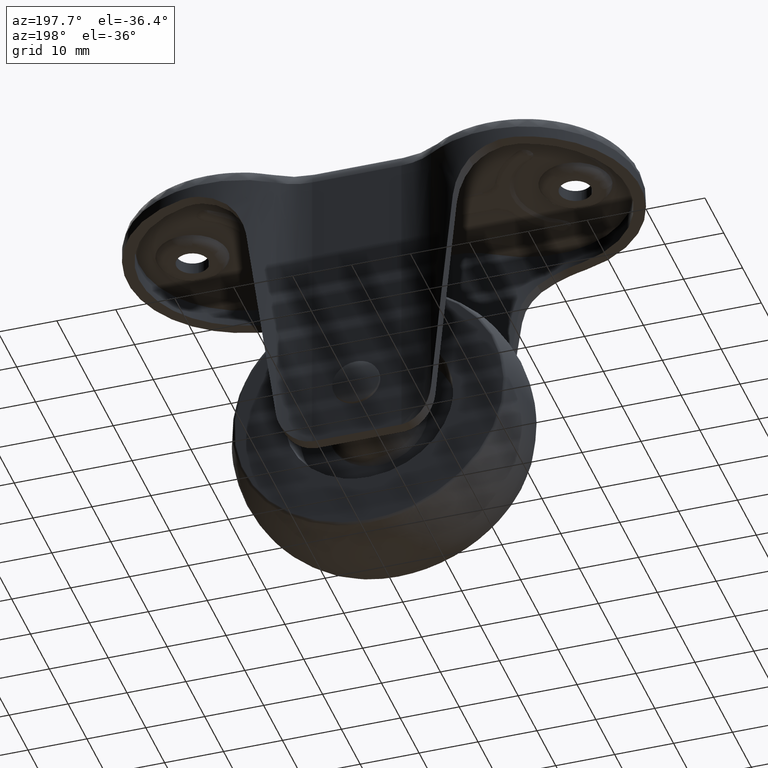
[diagram: clean part render]
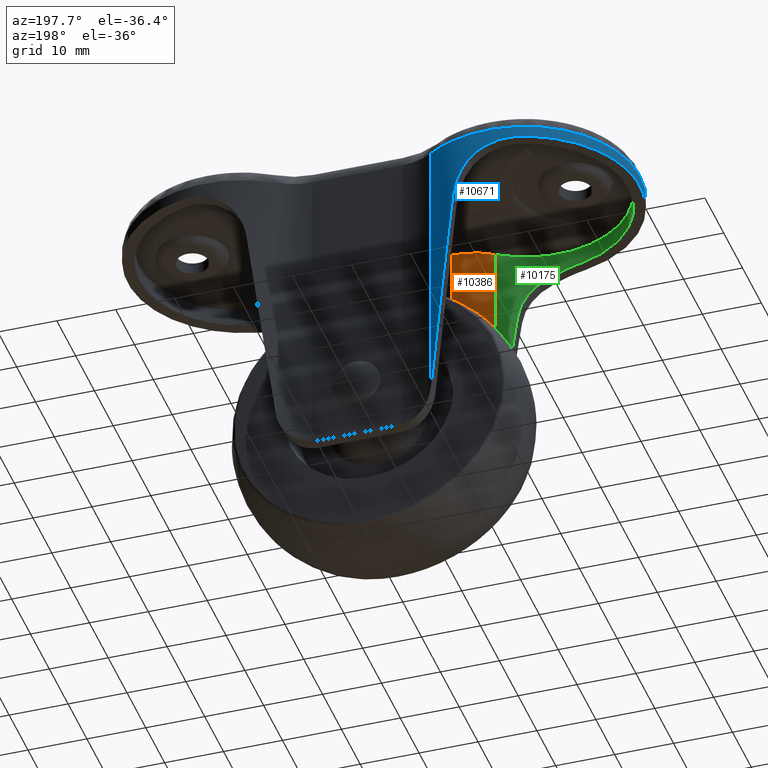
[diagram: same view with three faces highlighted in distinct colors, each labeled with its STEP entity id]
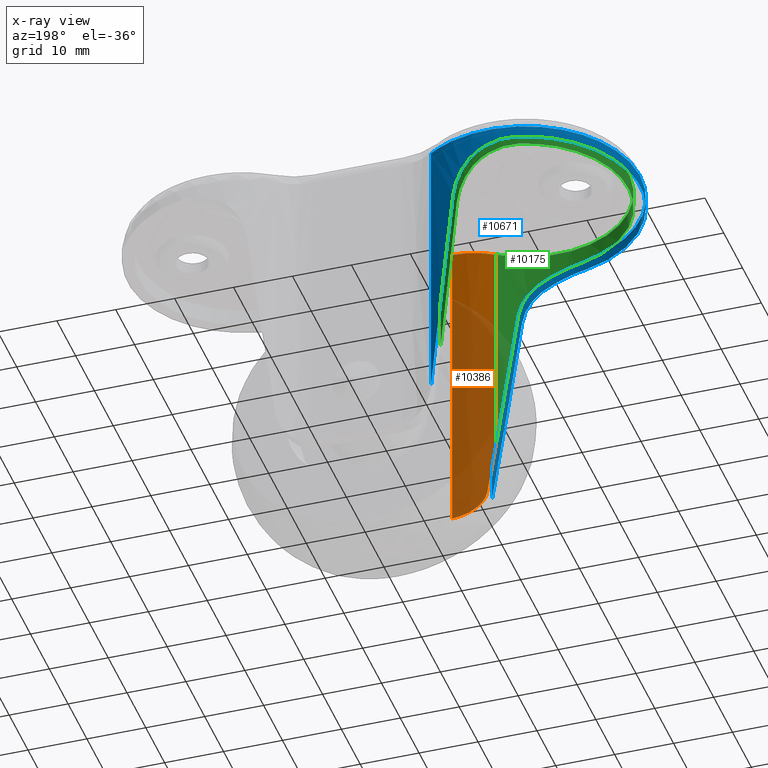
[diagram: x-ray of the same camera — body ghosted, the three highlighted faces saturated]
A machine part, auxiliary view with three faces highlighted in distinct colors.
The next image is the same camera in x-ray (body ghosted, the three faces saturated) — at least one of them is partly hidden behind the body in this view.
Their STEP definitions:

[orange] entity #10386 — the highlighted face is a freeform B-spline surface patch.
#9789=CARTESIAN_POINT('',(-14.252395133952280,-14.533898285573720,-40.727884689475850));
#9790=VERTEX_POINT('',#9789);
#9804=CARTESIAN_POINT('',(-13.146924909847920,-13.875537669035261,-49.731216060430903));
#9805=VERTEX_POINT('',#9804);
#9806=CARTESIAN_POINT('',(-14.252395133952280,-14.533898285573720,-40.727884689475850));
#9807=CARTESIAN_POINT('',(-13.717333118470126,-14.175042645783165,-45.085614571401472));
#9808=CARTESIAN_POINT('',(-13.146924909847920,-13.875537669035261,-49.731216060430903));
#9816=(BOUNDED_CURVE()B_SPLINE_CURVE(2,(#9806,#9807,#9808),.UNSPECIFIED.,.F.,.U.)CURVE()GEOMETRIC_REPRESENTATION_ITEM()QUASI_UNIFORM_CURVE()RATIONAL_B_SPLINE_CURVE((1.0,0.998561897936334,1.0))REPRESENTATION_ITEM(''));
#9817=EDGE_CURVE('',#9790,#9805,#9816,.T.);
#9842=CARTESIAN_POINT('',(-7.568323000000000,-12.500000000000000,-54.988164655750097));
#9843=VERTEX_POINT('',#9842);
#9844=CARTESIAN_POINT('',(-7.568323000000000,-12.500000000000000,-54.988164655750197));
#9845=CARTESIAN_POINT('',(-7.923047355010572,-12.500000000000000,-54.965851342054791));
#9846=CARTESIAN_POINT('',(-8.269613858895681,-12.515679584610460,-54.912668525606982));
#9847=CARTESIAN_POINT('',(-8.778011953881004,-12.559916716926480,-54.789116018658540));
#9848=CARTESIAN_POINT('',(-8.945558179465719,-12.578124425052581,-54.740588807651051));
#9849=CARTESIAN_POINT('',(-9.194001181965545,-12.610334574105851,-54.656697086526123));
#9850=CARTESIAN_POINT('',(-9.276335496638117,-12.621887974780520,-54.626880314329867));
#9851=CARTESIAN_POINT('',(-9.440036864974971,-12.646581118512850,-54.563492746673511));
#9852=CARTESIAN_POINT('',(-9.521251806437238,-12.659702458094410,-54.529969483248451));
#9853=CARTESIAN_POINT('',(-9.920878616036969,-12.728393867643261,-54.354732704300062));
#9854=CARTESIAN_POINT('',(-10.223209373476729,-12.793645015446710,-54.189186358038427));
#9855=CARTESIAN_POINT('',(-10.652566854991941,-12.902188481741200,-53.904237507917337));
#9856=CARTESIAN_POINT('',(-10.791636831860179,-12.940154375153041,-53.803108353591163));
#9857=CARTESIAN_POINT('',(-10.994183907780020,-12.999199037772049,-53.641999895681529));
#9858=CARTESIAN_POINT('',(-11.060759735472690,-13.019254506954329,-53.586652874549692));
#9859=CARTESIAN_POINT('',(-11.190750475613470,-13.059604438163500,-53.473766824805431));
#9860=CARTESIAN_POINT('',(-11.254306726278630,-13.079938510724070,-53.416121441165132));
#9861=CARTESIAN_POINT('',(-11.565065964502130,-13.182114470297440,-53.121942194765502));
#9862=CARTESIAN_POINT('',(-11.791386224990180,-13.265488106976351,-52.867715638583981));
#9863=CARTESIAN_POINT('',(-12.098481676771920,-13.387403881969940,-52.457193553786489));
#9864=CARTESIAN_POINT('',(-12.195413821177350,-13.427515901539680,-52.315457459287117));
#9865=CARTESIAN_POINT('',(-12.378137952888210,-13.505658105322841,-52.021630772631710));
#9866=CARTESIAN_POINT('',(-12.462811368831050,-13.543207600621651,-51.871300229084063));
#9867=CARTESIAN_POINT('',(-12.696348233485979,-13.649533581107139,-51.411718973105494));
#9868=CARTESIAN_POINT('',(-12.825352305102220,-13.712201722857291,-51.093230255580480));
#9869=CARTESIAN_POINT('',(-12.978076100163481,-13.788426418540160,-50.596029171628651));
#9870=CARTESIAN_POINT('',(-13.022144443687891,-13.810867572802319,-50.427033190344041));
#9871=CARTESIAN_POINT('',(-13.077465902774041,-13.839335172079309,-50.168300364604477));
#9872=CARTESIAN_POINT('',(-13.094067682636011,-13.847938290665640,-50.081325940640220));
#9873=CARTESIAN_POINT('',(-13.123377866931509,-13.863194164481140,-49.906865307321347));
#9874=CARTESIAN_POINT('',(-13.136116860657779,-13.869862628133520,-49.819240557246019));
#9875=CARTESIAN_POINT('',(-13.146924909847920,-13.875537669035261,-49.731216060430903));
#9876=B_SPLINE_CURVE_WITH_KNOTS('',3,(#9844,#9845,#9846,#9847,#9848,#9849,#9850,#9851,#9852,#9853,#9854,#9855,#9856,#9857,#9858,#9859,#9860,#9861,#9862,#9863,#9864,#9865,#9866,#9867,#9868,#9869,#9870,#9871,#9872,#9873,#9874,#9875),.UNSPECIFIED.,.F.,.U.,(4,2,2,2,2,2,2,2,2,2,2,2,2,2,2,4),(0.0,0.124999999999996,0.187499999999995,0.218749999999994,0.249999999999994,0.374999999999992,0.437499999999992,0.468749999999992,0.499999999999993,0.624999999999995,0.687499999999995,0.749999999999995,0.874999999999998,0.937499999999999,0.968750000000000,1.0),.UNSPECIFIED.);
#9877=EDGE_CURVE('',#9843,#9805,#9876,.T.);
#10144=CARTESIAN_POINT('',(-14.252395133952280,-14.533898285573720,-2.0));
#10145=VERTEX_POINT('',#10144);
#10163=CARTESIAN_POINT('',(-14.252395133952280,-14.533898285573720,-2.0));
#10164=CARTESIAN_POINT('',(-14.252395133952280,-14.533898285573720,-40.727884689475850));
#10165=QUASI_UNIFORM_CURVE('',1,(#10163,#10164),.UNSPECIFIED.,.F.,.U.);
#10166=EDGE_CURVE('',#10145,#9790,#10165,.T.);
#10332=CARTESIAN_POINT('',(-7.568323000000000,-12.500000000000000,-2.0));
#10333=VERTEX_POINT('',#10332);
#10334=CARTESIAN_POINT('',(-7.568323000000000,-12.500000000000000,-2.0));
#10335=CARTESIAN_POINT('',(-7.568323000000000,-12.500000000000000,-54.988164655750097));
#10336=QUASI_UNIFORM_CURVE('',1,(#10334,#10335),.UNSPECIFIED.,.F.,.U.);
#10337=EDGE_CURVE('',#10333,#9843,#10336,.T.);
#10353=CARTESIAN_POINT('',(-7.222585131991135,-12.504981645423610,-0.675295883606246));
#10354=CARTESIAN_POINT('',(-7.222585131991135,-12.504981645423610,-56.345986375053698));
#10355=CARTESIAN_POINT('',(-11.255744505332348,-12.388732058981999,-0.675295883606246));
#10356=CARTESIAN_POINT('',(-11.255744505332348,-12.388732058981999,-56.345986375053691));
#10357=CARTESIAN_POINT('',(-14.539829100651545,-14.732804768584888,-0.675295883606246));
#10358=CARTESIAN_POINT('',(-14.539829100651545,-14.732804768584888,-56.345986375053712));
#10366=(BOUNDED_SURFACE()B_SPLINE_SURFACE(1,2,((#10353,#10355,#10357),(#10354,#10356,#10358)),.UNSPECIFIED.,.F.,.F.,.U.)B_SPLINE_SURFACE_WITH_KNOTS((2,2),(3,3),(0.0,55.670690491447459),(0.0,7.853605346178926),.UNSPECIFIED.)GEOMETRIC_REPRESENTATION_ITEM()RATIONAL_B_SPLINE_SURFACE(((1.0,0.944030763194766,0.991947833816017),(1.0,0.944030763194766,0.991947833816017)))REPRESENTATION_ITEM('')SURFACE());
#10367=ORIENTED_EDGE('',*,*,#10337,.T.);
#10368=ORIENTED_EDGE('',*,*,#9877,.T.);
#10369=ORIENTED_EDGE('',*,*,#9817,.F.);
#10370=ORIENTED_EDGE('',*,*,#10166,.F.);
#10371=CARTESIAN_POINT('',(-14.252395133952280,-14.533898285573720,-2.0));
#10372=CARTESIAN_POINT('',(-11.219806822263426,-12.500000000000002,-2.000000000000000));
#10373=CARTESIAN_POINT('',(-7.568323000000000,-12.500000000000000,-2.0));
#10381=(BOUNDED_CURVE()B_SPLINE_CURVE(2,(#10371,#10372,#10373),.UNSPECIFIED.,.F.,.U.)CURVE()GEOMETRIC_REPRESENTATION_ITEM()QUASI_UNIFORM_CURVE()RATIONAL_B_SPLINE_CURVE((1.0,0.956689203871078,1.0))REPRESENTATION_ITEM(''));
#10382=EDGE_CURVE('',#10145,#10333,#10381,.T.);
#10383=ORIENTED_EDGE('',*,*,#10382,.T.);
#10384=EDGE_LOOP('',(#10367,#10368,#10369,#10370,#10383));
#10385=FACE_OUTER_BOUND('',#10384,.T.);
#10386=ADVANCED_FACE('',(#10385),#10366,.T.);

[blue] entity #10671 — the highlighted face is a freeform B-spline surface patch.
#6067=CARTESIAN_POINT('',(-13.138383149261101,16.194915232496449,-3.0));
#6068=VERTEX_POINT('',#6067);
#6209=CARTESIAN_POINT('',(-13.138383149261101,-16.194915232496449,-3.0));
#6210=VERTEX_POINT('',#6209);
#6244=CARTESIAN_POINT('',(-13.138383149261109,-16.194915232496431,-3.0));
#6245=CARTESIAN_POINT('',(-27.357451313489555,-25.731369616924937,-3.000000000000000));
#6246=CARTESIAN_POINT('',(-38.653469023043577,-12.865684808462470,-3.0));
#6247=CARTESIAN_POINT('',(-49.949486732597634,-8.673617E-015,-3.000000000000000));
#6248=CARTESIAN_POINT('',(-38.653469023043591,12.865684808462460,-3.0));
#6249=CARTESIAN_POINT('',(-27.357451313489562,25.731369616924937,-3.000000000000000));
#6250=CARTESIAN_POINT('',(-13.138383149261109,16.194915232496431,-3.0));
#6258=(BOUNDED_CURVE()B_SPLINE_CURVE(2,(#6244,#6245,#6246,#6247,#6248,#6249,#6250),.UNSPECIFIED.,.F.,.U.)B_SPLINE_CURVE_WITH_KNOTS((3,2,2,3),(0.0,0.333333333333333,0.666666666666667,1.0),.UNSPECIFIED.)CURVE()GEOMETRIC_REPRESENTATION_ITEM()RATIONAL_B_SPLINE_CURVE((1.0,0.751459949899671,1.0,0.751459949899671,1.0,0.751459949899671,1.0))REPRESENTATION_ITEM(''));
#6259=EDGE_CURVE('',#6210,#6068,#6258,.T.);
#9415=CARTESIAN_POINT('',(-13.138383063988879,16.194915359639250,-49.797710523138001));
#9416=VERTEX_POINT('',#9415);
#9528=CARTESIAN_POINT('',(-13.146924909847920,16.200640816234500,-49.731216060430903));
#9529=VERTEX_POINT('',#9528);
#9535=CARTESIAN_POINT('',(-13.138383063988879,16.194915359639250,-49.797710523138001));
#9536=CARTESIAN_POINT('',(-13.141353216536970,16.196907199253189,-49.775568751004997));
#9537=CARTESIAN_POINT('',(-13.144200677479731,16.198815753667439,-49.753403152587730));
#9538=CARTESIAN_POINT('',(-13.146924909847920,16.200640816234500,-49.731216060430903));
#9539=B_SPLINE_CURVE_WITH_KNOTS('',3,(#9535,#9536,#9537,#9538),.UNSPECIFIED.,.F.,.U.,(4,4),(0.0,0.000067284265546),.UNSPECIFIED.);
#9540=EDGE_CURVE('',#9416,#9529,#9539,.T.);
#9559=CARTESIAN_POINT('',(-28.248421000000100,19.031576892279801,-5.0));
#9560=VERTEX_POINT('',#9559);
#9561=CARTESIAN_POINT('',(-20.565739739598200,19.195203996410800,-7.781735637525290));
#9562=VERTEX_POINT('',#9561);
#9563=CARTESIAN_POINT('',(-28.248421000000100,19.031576892279801,-5.0));
#9564=CARTESIAN_POINT('',(-27.560650331045860,19.185108014251860,-4.999999999999998));
#9565=CARTESIAN_POINT('',(-26.876363146290839,19.298841407486290,-5.058718576401930));
#9566=CARTESIAN_POINT('',(-25.855922594394990,19.414498125853680,-5.235853725108211));
#9567=CARTESIAN_POINT('',(-25.516781963713779,19.443869097330829,-5.309816000990050));
#9568=CARTESIAN_POINT('',(-25.094263534468130,19.469456961600329,-5.421617922078506));
#9569=CARTESIAN_POINT('',(-25.009830432497239,19.474017952275162,-5.444947477122105));
#9570=CARTESIAN_POINT('',(-24.841110050269350,19.482034457193340,-5.493569634233634));
#9571=CARTESIAN_POINT('',(-24.756709458315431,19.485493066730939,-5.518899120276756));
#9572=CARTESIAN_POINT('',(-24.504979847885782,19.494183552663181,-5.597475895946546));
#9573=CARTESIAN_POINT('',(-24.338906703212970,19.497747540765779,-5.653360328100747));
#9574=CARTESIAN_POINT('',(-23.517098448496419,19.505103864432179,-5.949971538278835));
#9575=CARTESIAN_POINT('',(-22.886840458916861,19.477632293371911,-6.241863207577262));
#9576=CARTESIAN_POINT('',(-22.132232873426140,19.410935093546410,-6.674183028844960));
#9577=CARTESIAN_POINT('',(-21.982984170913252,19.395971053522398,-6.764044717300138));
#9578=CARTESIAN_POINT('',(-21.687861713591751,19.363007579102749,-6.950644744152478));
#9579=CARTESIAN_POINT('',(-21.541769774720180,19.344975652043399,-7.047543260076351));
#9580=CARTESIAN_POINT('',(-21.111132839679080,19.286999813463581,-7.346949653765253));
#9581=CARTESIAN_POINT('',(-20.833696074104971,19.243144714879900,-7.558415018147058));
#9582=CARTESIAN_POINT('',(-20.565739739598200,19.195203996410800,-7.781735637525290));
#9583=B_SPLINE_CURVE_WITH_KNOTS('',3,(#9563,#9564,#9565,#9566,#9567,#9568,#9569,#9570,#9571,#9572,#9573,#9574,#9575,#9576,#9577,#9578,#9579,#9580,#9581,#9582),.UNSPECIFIED.,.F.,.U.,(4,2,2,2,2,2,2,2,2,4),(0.0,0.250000000000003,0.375000000000005,0.406250000000005,0.437500000000006,0.500000000000005,0.750000000000001,0.812500000000001,0.875000000000000,1.0),.UNSPECIFIED.);
#9584=EDGE_CURVE('',#9560,#9562,#9583,.T.);
#9638=CARTESIAN_POINT('',(-20.565739739598200,-19.195203996410800,-7.781735637525290));
#9639=VERTEX_POINT('',#9638);
#9640=CARTESIAN_POINT('',(-28.248421000000100,-19.031576892279801,-5.0));
#9641=VERTEX_POINT('',#9640);
#9642=CARTESIAN_POINT('',(-20.565739739598200,-19.195203996410800,-7.781735637525290));
#9643=CARTESIAN_POINT('',(-21.101772546931599,-19.291106927587538,-7.334994858651127));
#9644=CARTESIAN_POINT('',(-21.670439245790469,-19.369757449527430,-6.939636745600453));
#9645=CARTESIAN_POINT('',(-22.572305725553559,-19.450007154214159,-6.421630391053091));
#9646=CARTESIAN_POINT('',(-22.881119828911739,-19.470463652217791,-6.261544675683491));
#9647=CARTESIAN_POINT('',(-23.357065030577608,-19.490044806066781,-6.040747154400902));
#9648=CARTESIAN_POINT('',(-23.517837324423191,-19.494719288210959,-5.970374847613859));
#9649=CARTESIAN_POINT('',(-23.843744393374809,-19.500055003954781,-5.836224791548706));
#9650=CARTESIAN_POINT('',(-24.007557315914571,-19.500692698389638,-5.772993401545668));
#9651=CARTESIAN_POINT('',(-24.830216442797809,-19.493432379622710,-5.475872753876613));
#9652=CARTESIAN_POINT('',(-25.500367531428569,-19.454281508646851,-5.298432579840455));
#9653=CARTESIAN_POINT('',(-26.522445608811879,-19.339203993115820,-5.119737863259099));
#9654=CARTESIAN_POINT('',(-26.865964907695961,-19.291437237302532,-5.074830168567713));
#9655=CARTESIAN_POINT('',(-27.558667867905100,-19.175744797500489,-5.014796581934174));
#9656=CARTESIAN_POINT('',(-27.904279279149758,-19.108399686424079,-4.999999999999999));
#9657=CARTESIAN_POINT('',(-28.248421000000100,-19.031576892279801,-5.0));
#9658=B_SPLINE_CURVE_WITH_KNOTS('',3,(#9642,#9643,#9644,#9645,#9646,#9647,#9648,#9649,#9650,#9651,#9652,#9653,#9654,#9655,#9656,#9657),.UNSPECIFIED.,.F.,.U.,(4,2,2,2,2,2,2,4),(0.0,0.250000000000003,0.375000000000003,0.437500000000003,0.500000000000003,0.750000000000002,0.875000000000001,1.0),.UNSPECIFIED.);
#9659=EDGE_CURVE('',#9639,#9641,#9658,.T.);
#9717=CARTESIAN_POINT('',(-17.561019000000002,-18.406235999835449,-13.781307000000000));
#9718=VERTEX_POINT('',#9717);
#9719=CARTESIAN_POINT('',(-17.561019000000002,-18.406235999835449,-13.781307000000000));
#9720=CARTESIAN_POINT('',(-17.631676481243321,-18.430953826208050,-13.205851266480700));
#9721=CARTESIAN_POINT('',(-17.750759780263561,-18.472334247863930,-12.646371402059380));
#9722=CARTESIAN_POINT('',(-17.998155403956069,-18.553581740923580,-11.829410749588460));
#9723=CARTESIAN_POINT('',(-18.092154584256878,-18.583853299370070,-11.560821157288940));
#9724=CARTESIAN_POINT('',(-18.250595703243128,-18.633234031150899,-11.163497326396049));
#9725=CARTESIAN_POINT('',(-18.306320701251881,-18.650355825584569,-11.031984001449819));
#9726=CARTESIAN_POINT('',(-18.394332446829662,-18.676922401129431,-10.836112608877640));
#9727=CARTESIAN_POINT('',(-18.424407354054139,-18.685925184883448,-10.771055322876981));
#9728=CARTESIAN_POINT('',(-18.486045563007899,-18.704206474356571,-10.641409196626681));
#9729=CARTESIAN_POINT('',(-18.517643824068369,-18.713495012003929,-10.576753540567820));
#9730=CARTESIAN_POINT('',(-18.807457403376251,-18.797858623864510,-9.999588088827744));
#9731=CARTESIAN_POINT('',(-19.104827541972359,-18.878732863664968,-9.516605925897020));
#9732=CARTESIAN_POINT('',(-19.776385778718002,-19.040229800116389,-8.606710006488131));
#9733=CARTESIAN_POINT('',(-20.150562431479191,-19.120923622492381,-8.179800128155380));
#9734=CARTESIAN_POINT('',(-20.565739739598200,-19.195203996410800,-7.781735637525290));
#9735=B_SPLINE_CURVE_WITH_KNOTS('',3,(#9719,#9720,#9721,#9722,#9723,#9724,#9725,#9726,#9727,#9728,#9729,#9730,#9731,#9732,#9733,#9734),.UNSPECIFIED.,.F.,.U.,(4,2,2,2,2,2,2,4),(0.0,0.250000000000004,0.375000000000005,0.437500000000005,0.468750000000005,0.500000000000005,0.750000000000002,1.0),.UNSPECIFIED.);
#9736=EDGE_CURVE('',#9718,#9639,#9735,.T.);
#9773=CARTESIAN_POINT('',(-13.146924909847920,-16.200640816234749,-49.731216060430903));
#9774=VERTEX_POINT('',#9773);
#9775=CARTESIAN_POINT('',(-13.146924909847920,-16.200640816234749,-49.731216060430903));
#9776=CARTESIAN_POINT('',(-15.213310581223700,-17.584946416121781,-32.901856769340071));
#9777=CARTESIAN_POINT('',(-17.561018999999980,-18.406235999835459,-13.781306999999959));
#9785=(BOUNDED_CURVE()B_SPLINE_CURVE(2,(#9775,#9776,#9777),.UNSPECIFIED.,.F.,.U.)CURVE()GEOMETRIC_REPRESENTATION_ITEM()QUASI_UNIFORM_CURVE()RATIONAL_B_SPLINE_CURVE((1.0,0.991963474376128,1.0))REPRESENTATION_ITEM(''));
#9786=EDGE_CURVE('',#9774,#9718,#9785,.T.);
#9916=CARTESIAN_POINT('',(-13.138383063988879,-16.194915359639250,-49.797710523138001));
#9917=VERTEX_POINT('',#9916);
#9951=CARTESIAN_POINT('',(-13.146924909847920,-16.200640816234749,-49.731216060430903));
#9952=CARTESIAN_POINT('',(-13.144200677479731,-16.198815753667439,-49.753403152587730));
#9953=CARTESIAN_POINT('',(-13.141353216536970,-16.196907199253189,-49.775568751004997));
#9954=CARTESIAN_POINT('',(-13.138383063988879,-16.194915359639250,-49.797710523138001));
#9955=B_SPLINE_CURVE_WITH_KNOTS('',3,(#9951,#9952,#9953,#9954),.UNSPECIFIED.,.F.,.U.,(4,4),(0.0,0.000067284265546),.UNSPECIFIED.);
#9956=EDGE_CURVE('',#9774,#9917,#9955,.T.);
#9966=CARTESIAN_POINT('',(-28.248421000000100,-19.031576892279791,-5.0));
#9967=CARTESIAN_POINT('',(-43.500000000000007,-15.626965236950049,-5.0));
#9968=CARTESIAN_POINT('',(-43.500000000000000,0.0,-5.0));
#9969=CARTESIAN_POINT('',(-43.500000000000007,15.626965236950035,-5.0));
#9970=CARTESIAN_POINT('',(-28.248421000000111,19.031576892279791,-5.0));
#9978=(BOUNDED_CURVE()B_SPLINE_CURVE(2,(#9966,#9967,#9968,#9969,#9970),.UNSPECIFIED.,.F.,.U.)B_SPLINE_CURVE_WITH_KNOTS((3,2,3),(0.0,0.500000000000000,1.0),.UNSPECIFIED.)CURVE()GEOMETRIC_REPRESENTATION_ITEM()RATIONAL_B_SPLINE_CURVE((1.0,0.780342150466624,1.0,0.780342150466624,1.0))REPRESENTATION_ITEM(''));
#9979=EDGE_CURVE('',#9641,#9560,#9978,.T.);
#10006=CARTESIAN_POINT('',(-17.561019000000002,18.406235999835449,-13.781307000000000));
#10007=VERTEX_POINT('',#10006);
#10008=CARTESIAN_POINT('',(-17.561019000000002,18.406235999835449,-13.781307000000000));
#10009=CARTESIAN_POINT('',(-15.213310581223466,17.584946416121689,-32.901856769341990));
#10010=CARTESIAN_POINT('',(-13.146924909847920,16.200640816234500,-49.731216060430903));
#10018=(BOUNDED_CURVE()B_SPLINE_CURVE(2,(#10008,#10009,#10010),.UNSPECIFIED.,.F.,.U.)CURVE()GEOMETRIC_REPRESENTATION_ITEM()QUASI_UNIFORM_CURVE()RATIONAL_B_SPLINE_CURVE((1.0,0.991963474376106,1.0))REPRESENTATION_ITEM(''));
#10019=EDGE_CURVE('',#10007,#9529,#10018,.T.);
#10074=CARTESIAN_POINT('',(-20.565739739598200,19.195203996410800,-7.781735637525290));
#10075=CARTESIAN_POINT('',(-20.150562120857501,19.120923566918300,-8.179800425973834));
#10076=CARTESIAN_POINT('',(-19.776148386052022,19.040183414453910,-8.606940030506305));
#10077=CARTESIAN_POINT('',(-19.271979004900249,18.918924234693421,-9.290177921308287));
#10078=CARTESIAN_POINT('',(-19.113562117362541,18.878464486106839,-9.525057011364291));
#10079=CARTESIAN_POINT('',(-18.890487394851000,18.818841756902611,-9.888338159047788));
#10080=CARTESIAN_POINT('',(-18.818557980732500,18.799145245030381,-10.011261705056549));
#10081=CARTESIAN_POINT('',(-18.679618477586072,18.760297007210092,-10.260846936985081));
#10082=CARTESIAN_POINT('',(-18.612537442326499,18.741124546820121,-10.387650534313121));
#10083=CARTESIAN_POINT('',(-18.290428205710089,18.647327512594739,-11.029750292615690));
#10084=CARTESIAN_POINT('',(-18.080094629728769,18.580494257769200,-11.558637945270890));
#10085=CARTESIAN_POINT('',(-17.750725254159999,18.472320146829599,-12.646675246401950));
#10086=CARTESIAN_POINT('',(-17.631680347612200,18.430955178764538,-13.205819777420320));
#10087=CARTESIAN_POINT('',(-17.561019000000002,18.406235999835449,-13.781307000000000));
#10088=B_SPLINE_CURVE_WITH_KNOTS('',3,(#10074,#10075,#10076,#10077,#10078,#10079,#10080,#10081,#10082,#10083,#10084,#10085,#10086,#10087),.UNSPECIFIED.,.F.,.U.,(4,2,2,2,2,2,4),(0.0,0.250000000000000,0.374999999999999,0.437499999999999,0.499999999999999,0.749999999999999,1.0),.UNSPECIFIED.);
#10089=EDGE_CURVE('',#9562,#10007,#10088,.T.);
#10622=CARTESIAN_POINT('',(-13.138383149261101,-16.194915232496449,-3.0));
#10623=CARTESIAN_POINT('',(-13.138383063988879,-16.194915359639250,-49.797710523138001));
#10624=QUASI_UNIFORM_CURVE('',1,(#10622,#10623),.UNSPECIFIED.,.F.,.U.);
#10625=EDGE_CURVE('',#6210,#9917,#10624,.T.);
#10631=CARTESIAN_POINT('',(-12.718171695189460,15.905041656681551,-1.830057236921548));
#10632=CARTESIAN_POINT('',(-12.718171695189460,15.905041656681551,-50.996901855293423));
#10633=CARTESIAN_POINT('',(-27.039135527591142,26.063245489406818,-1.830057236921548));
#10634=CARTESIAN_POINT('',(-27.039135527591142,26.063245489406818,-50.996901855293416));
#10635=CARTESIAN_POINT('',(-38.638639998762919,12.882554831500549,-1.830057236921548));
#10636=CARTESIAN_POINT('',(-38.638639998762919,12.882554831500549,-50.996901855293423));
#10637=CARTESIAN_POINT('',(-50.238144469934689,-0.298135826405706,-1.830057236921548));
#10638=CARTESIAN_POINT('',(-50.238144469934689,-0.298135826405706,-50.996901855293416));
#10639=CARTESIAN_POINT('',(-38.342137391608723,-13.211854337685470,-1.830057236921548));
#10640=CARTESIAN_POINT('',(-38.342137391608723,-13.211854337685470,-50.996901855293423));
#10641=CARTESIAN_POINT('',(-26.446130313282744,-26.125572848965234,-1.830057236921548));
#10642=CARTESIAN_POINT('',(-26.446130313282744,-26.125572848965234,-50.996901855293416));
#10643=CARTESIAN_POINT('',(-12.359683164273900,-15.644584493169230,-1.830057236921548));
#10644=CARTESIAN_POINT('',(-12.359683164273900,-15.644584493169230,-50.996901855293423));
#10652=(BOUNDED_SURFACE()B_SPLINE_SURFACE(1,2,((#10631,#10633,#10635,#10637,#10639,#10641,#10643),(#10632,#10634,#10636,#10638,#10640,#10642,#10644)),.UNSPECIFIED.,.F.,.F.,.U.)B_SPLINE_SURFACE_WITH_KNOTS((2,2),(3,2,2,3),(0.0,49.166844618371869),(0.0,29.941394732762419,59.882789465524837,89.824184198287256),.UNSPECIFIED.)GEOMETRIC_REPRESENTATION_ITEM()RATIONAL_B_SPLINE_SURFACE(((1.0,0.743144825477394,1.0,0.743144825477394,1.0,0.743144825477394,1.0),(1.0,0.743144825477394,1.0,0.743144825477394,1.0,0.743144825477394,1.0)))REPRESENTATION_ITEM('')SURFACE());
#10653=ORIENTED_EDGE('',*,*,#10625,.F.);
#10654=ORIENTED_EDGE('',*,*,#6259,.T.);
#10655=CARTESIAN_POINT('',(-13.138383149261101,16.194915232496449,-3.0));
#10656=CARTESIAN_POINT('',(-13.138383063988879,16.194915359639250,-49.797710523138001));
#10657=QUASI_UNIFORM_CURVE('',1,(#10655,#10656),.UNSPECIFIED.,.F.,.U.);
#10658=EDGE_CURVE('',#6068,#9416,#10657,.T.);
#10659=ORIENTED_EDGE('',*,*,#10658,.T.);
#10660=ORIENTED_EDGE('',*,*,#9540,.T.);
#10661=ORIENTED_EDGE('',*,*,#10019,.F.);
#10662=ORIENTED_EDGE('',*,*,#10089,.F.);
#10663=ORIENTED_EDGE('',*,*,#9584,.F.);
#10664=ORIENTED_EDGE('',*,*,#9979,.F.);
#10665=ORIENTED_EDGE('',*,*,#9659,.F.);
#10666=ORIENTED_EDGE('',*,*,#9736,.F.);
#10667=ORIENTED_EDGE('',*,*,#9786,.F.);
#10668=ORIENTED_EDGE('',*,*,#9956,.T.);
#10669=EDGE_LOOP('',(#10653,#10654,#10659,#10660,#10661,#10662,#10663,#10664,#10665,#10666,#10667,#10668));
#10670=FACE_OUTER_BOUND('',#10669,.T.);
#10671=ADVANCED_FACE('',(#10670),#10652,.T.);

[green] entity #10175 — the highlighted face is a freeform B-spline surface patch.
#9586=CARTESIAN_POINT('',(-20.565739739598200,17.159716095082249,-7.781735637525290));
#9587=VERTEX_POINT('',#9586);
#9593=CARTESIAN_POINT('',(-28.248421000000100,16.976481349406850,-5.0));
#9594=VERTEX_POINT('',#9593);
#9595=CARTESIAN_POINT('',(-28.248421000000100,16.976481349406850,-5.0));
#9596=CARTESIAN_POINT('',(-27.563879356911009,17.147790175542131,-5.0));
#9597=CARTESIAN_POINT('',(-26.881096035706442,17.274823562507880,-5.058178189834202));
#9598=CARTESIAN_POINT('',(-25.860647977691588,17.404181967958088,-5.234894330271882));
#9599=CARTESIAN_POINT('',(-25.521125422855160,17.437071472463309,-5.308779721977223));
#9600=CARTESIAN_POINT('',(-25.012986543101778,17.471481885789132,-5.443068873454924));
#9601=CARTESIAN_POINT('',(-24.843317258117771,17.480475089957910,-5.491909010557856));
#9602=CARTESIAN_POINT('',(-24.507749933678109,17.493438294781509,-5.596567635670303));
#9603=CARTESIAN_POINT('',(-24.341669027072271,17.497436833756929,-5.652408377538183));
#9604=CARTESIAN_POINT('',(-23.519618210705360,17.505763877720351,-5.948883770848481));
#9605=CARTESIAN_POINT('',(-22.888518383339662,17.475245787062729,-6.240928368338763));
#9606=CARTESIAN_POINT('',(-22.132241756269000,17.400706294914489,-6.674171335395933));
#9607=CARTESIAN_POINT('',(-21.982628186241651,17.383970835756809,-6.764254526446122));
#9608=CARTESIAN_POINT('',(-21.686718068965099,17.347073463870998,-6.951383198212179));
#9609=CARTESIAN_POINT('',(-21.540695212831761,17.326939854103689,-7.048270663186229));
#9610=CARTESIAN_POINT('',(-21.110535658208359,17.262244778509459,-7.347404444212644));
#9611=CARTESIAN_POINT('',(-20.833410685897430,17.213286432074501,-7.558652866243830));
#9612=CARTESIAN_POINT('',(-20.565739739598200,17.159716095082249,-7.781735637525290));
#9613=B_SPLINE_CURVE_WITH_KNOTS('',3,(#9595,#9596,#9597,#9598,#9599,#9600,#9601,#9602,#9603,#9604,#9605,#9606,#9607,#9608,#9609,#9610,#9611,#9612),.UNSPECIFIED.,.F.,.U.,(4,2,2,2,2,2,2,2,4),(0.0,0.250000000000001,0.375000000000001,0.437500000000002,0.500000000000002,0.750000000000002,0.812500000000002,0.875000000000001,1.0),.UNSPECIFIED.);
#9614=EDGE_CURVE('',#9594,#9587,#9613,.T.);
#9661=CARTESIAN_POINT('',(-28.248421000000100,-16.976481349406850,-5.0));
#9662=VERTEX_POINT('',#9661);
#9668=CARTESIAN_POINT('',(-20.565739739598200,-17.159716095082249,-7.781735637525290));
#9669=VERTEX_POINT('',#9668);
#9670=CARTESIAN_POINT('',(-20.565739739598200,-17.159716095082249,-7.781735637525290));
#9671=CARTESIAN_POINT('',(-21.101156997771831,-17.266871852359529,-7.335507869323049));
#9672=CARTESIAN_POINT('',(-21.669593562100580,-17.354677695323609,-6.940151118333926));
#9673=CARTESIAN_POINT('',(-22.572170203714592,-17.444274421466510,-6.421693926125383));
#9674=CARTESIAN_POINT('',(-22.881397987592951,-17.467112740300060,-6.261382978243353));
#9675=CARTESIAN_POINT('',(-23.278823102452670,-17.485314838571711,-6.077052883542763));
#9676=CARTESIAN_POINT('',(-23.358853749315792,-17.488437092146889,-6.040991454448291));
#9677=CARTESIAN_POINT('',(-23.520021623530919,-17.493602293377648,-5.970495227026479));
#9678=CARTESIAN_POINT('',(-23.601276366659270,-17.495646978749541,-5.936012813529754));
#9679=CARTESIAN_POINT('',(-23.845763624313090,-17.500079602780801,-5.835427869614782));
#9680=CARTESIAN_POINT('',(-24.009553002398309,-17.500771182134930,-5.772239440157622));
#9681=CARTESIAN_POINT('',(-24.832361429510271,-17.492584317917292,-5.475231783034452));
#9682=CARTESIAN_POINT('',(-25.502872948899881,-17.448890177280621,-5.297813456750220));
#9683=CARTESIAN_POINT('',(-26.355289100845649,-17.341630199361209,-5.149008401740234));
#9684=CARTESIAN_POINT('',(-26.526491747210478,-17.317537806889909,-5.122920496495435));
#9685=CARTESIAN_POINT('',(-26.784371332948950,-17.277292766538910,-5.089329446103690));
#9686=CARTESIAN_POINT('',(-26.870510529733060,-17.263193191444639,-5.079056204664499));
#9687=CARTESIAN_POINT('',(-27.043147799848011,-17.233598618243640,-5.060366222173532));
#9688=CARTESIAN_POINT('',(-27.129716382841380,-17.218089401095330,-5.051944847789017));
#9689=CARTESIAN_POINT('',(-27.561754472267729,-17.137314295346059,-5.014640592317037));
#9690=CARTESIAN_POINT('',(-27.905871603018038,-17.062205476905561,-5.0));
#9691=CARTESIAN_POINT('',(-28.248421000000100,-16.976481349406850,-5.0));
#9692=B_SPLINE_CURVE_WITH_KNOTS('',3,(#9670,#9671,#9672,#9673,#9674,#9675,#9676,#9677,#9678,#9679,#9680,#9681,#9682,#9683,#9684,#9685,#9686,#9687,#9688,#9689,#9690,#9691),.UNSPECIFIED.,.F.,.U.,(4,2,2,2,2,2,2,2,2,2,4),(0.0,0.249999999999997,0.374999999999996,0.406249999999996,0.437499999999997,0.499999999999997,0.750000000000001,0.812500000000002,0.843750000000002,0.875000000000002,1.0),.UNSPECIFIED.);
#9693=EDGE_CURVE('',#9669,#9662,#9692,.T.);
#9739=CARTESIAN_POINT('',(-17.561019000000002,-16.272354583207651,-13.781307000000000));
#9740=VERTEX_POINT('',#9739);
#9741=CARTESIAN_POINT('',(-17.561019000000002,-16.272354583207651,-13.781307000000000));
#9742=CARTESIAN_POINT('',(-17.631800951315999,-16.300363043976699,-13.204837538678440));
#9743=CARTESIAN_POINT('',(-17.751122760634139,-16.347249003990441,-12.644791592778571));
#9744=CARTESIAN_POINT('',(-17.998819086929270,-16.439087013468189,-11.827410663854209));
#9745=CARTESIAN_POINT('',(-18.092910781273140,-16.473276827396742,-11.558752792424331));
#9746=CARTESIAN_POINT('',(-18.251464299045349,-16.528988941020000,-11.161406184220780));
#9747=CARTESIAN_POINT('',(-18.307222451180579,-16.548296838456359,-11.029898551900320));
#9748=CARTESIAN_POINT('',(-18.395276340686362,-16.578239768480600,-10.834052197153280));
#9749=CARTESIAN_POINT('',(-18.425364036317220,-16.588384201821160,-10.769006007350811));
#9750=CARTESIAN_POINT('',(-18.487025176481509,-16.608978449924820,-10.639387006863300));
#9751=CARTESIAN_POINT('',(-18.518627163392068,-16.619437406683911,-10.574760920427080));
#9752=CARTESIAN_POINT('',(-18.808392374903828,-16.714385275463879,-9.998005201110701));
#9753=CARTESIAN_POINT('',(-19.105586634789979,-16.805223025671399,-9.515489904846742));
#9754=CARTESIAN_POINT('',(-19.776720165270230,-16.986309504117362,-8.606344612358750));
#9755=CARTESIAN_POINT('',(-20.150645513300450,-17.076641200497889,-8.179720470808466));
#9756=CARTESIAN_POINT('',(-20.565739739598200,-17.159716095082249,-7.781735637525289));
#9757=B_SPLINE_CURVE_WITH_KNOTS('',3,(#9741,#9742,#9743,#9744,#9745,#9746,#9747,#9748,#9749,#9750,#9751,#9752,#9753,#9754,#9755,#9756),.UNSPECIFIED.,.F.,.U.,(4,2,2,2,2,2,2,4),(0.0,0.250000000000003,0.375000000000004,0.437500000000004,0.468750000000005,0.500000000000006,0.750000000000003,1.0),.UNSPECIFIED.);
#9758=EDGE_CURVE('',#9740,#9669,#9757,.T.);
#9789=CARTESIAN_POINT('',(-14.252395133952280,-14.533898285573720,-40.727884689475850));
#9790=VERTEX_POINT('',#9789);
#9791=CARTESIAN_POINT('',(-14.252395133952261,-14.533898285573720,-40.727884689475907));
#9792=CARTESIAN_POINT('',(-15.813351052193472,-15.580801270950804,-28.014919534274089));
#9793=CARTESIAN_POINT('',(-17.561018999999980,-16.272354583207651,-13.781306999999989));
#9801=(BOUNDED_CURVE()B_SPLINE_CURVE(2,(#9791,#9792,#9793),.UNSPECIFIED.,.F.,.U.)CURVE()GEOMETRIC_REPRESENTATION_ITEM()QUASI_UNIFORM_CURVE()RATIONAL_B_SPLINE_CURVE((1.0,0.994281928487948,1.0))REPRESENTATION_ITEM(''));
#9802=EDGE_CURVE('',#9790,#9740,#9801,.T.);
#9982=CARTESIAN_POINT('',(-28.248421000000100,-16.976481349406839,-5.0));
#9983=CARTESIAN_POINT('',(-41.500000000000000,-13.660229568602624,-5.0));
#9984=CARTESIAN_POINT('',(-41.500000000000000,0.0,-5.0));
#9985=CARTESIAN_POINT('',(-41.500000000000000,13.660229568602624,-5.0));
#9986=CARTESIAN_POINT('',(-28.248421000000111,16.976481349406839,-5.0));
#9994=(BOUNDED_CURVE()B_SPLINE_CURVE(2,(#9982,#9983,#9984,#9985,#9986),.UNSPECIFIED.,.F.,.U.)B_SPLINE_CURVE_WITH_KNOTS((3,2,3),(0.0,0.500000000000000,1.0),.UNSPECIFIED.)CURVE()GEOMETRIC_REPRESENTATION_ITEM()RATIONAL_B_SPLINE_CURVE((1.0,0.788278794046155,1.0,0.788278794046155,1.0))REPRESENTATION_ITEM(''));
#9995=EDGE_CURVE('',#9662,#9594,#9994,.T.);
#10022=CARTESIAN_POINT('',(-14.252394908147000,14.533898318463720,-40.727886528512236));
#10023=VERTEX_POINT('',#10022);
#10037=CARTESIAN_POINT('',(-17.561019000000002,16.272354583207651,-13.781307000000000));
#10038=VERTEX_POINT('',#10037);
#10039=CARTESIAN_POINT('',(-17.561018999999991,16.272354583207651,-13.781306999999950));
#10040=CARTESIAN_POINT('',(-15.813350924327985,15.580801220354351,-28.014920575654795));
#10041=CARTESIAN_POINT('',(-14.252394908147000,14.533898318463720,-40.727886528512236));
#10049=(BOUNDED_CURVE()B_SPLINE_CURVE(2,(#10039,#10040,#10041),.UNSPECIFIED.,.F.,.U.)CURVE()GEOMETRIC_REPRESENTATION_ITEM()QUASI_UNIFORM_CURVE()RATIONAL_B_SPLINE_CURVE((1.0,0.994281927658428,1.0))REPRESENTATION_ITEM(''));
#10050=EDGE_CURVE('',#10038,#10023,#10049,.T.);
#10092=CARTESIAN_POINT('',(-20.565739739598200,17.159716095082249,-7.781735637525290));
#10093=CARTESIAN_POINT('',(-20.150645637160618,17.076641225286640,-8.179720352053577));
#10094=CARTESIAN_POINT('',(-19.776470769837189,16.986255014961561,-8.606586181690265));
#10095=CARTESIAN_POINT('',(-19.272593527154800,16.850278712482410,-9.289303712875389));
#10096=CARTESIAN_POINT('',(-19.114265084659589,16.804870880509949,-9.523992083315340));
#10097=CARTESIAN_POINT('',(-18.891288075370969,16.737893691099551,-9.886994612013876));
#10098=CARTESIAN_POINT('',(-18.819385502161730,16.715757049802200,-10.009826612327080));
#10099=CARTESIAN_POINT('',(-18.680485791014931,16.672074523094899,-10.259238121670791));
#10100=CARTESIAN_POINT('',(-18.613424558502508,16.650507549723489,-10.385945655038279));
#10101=CARTESIAN_POINT('',(-18.291296177888050,16.544916049254780,-11.027768148337341));
#10102=CARTESIAN_POINT('',(-18.080827854060750,16.469496658924321,-11.556587755728010));
#10103=CARTESIAN_POINT('',(-17.751088628856980,16.347232969746958,-12.645104170964350));
#10104=CARTESIAN_POINT('',(-17.631806188735592,16.300365116426789,-13.204794883301579));
#10105=CARTESIAN_POINT('',(-17.561019000000002,16.272354583207651,-13.781307000000000));
#10106=B_SPLINE_CURVE_WITH_KNOTS('',3,(#10092,#10093,#10094,#10095,#10096,#10097,#10098,#10099,#10100,#10101,#10102,#10103,#10104,#10105),.UNSPECIFIED.,.F.,.U.,(4,2,2,2,2,2,4),(0.0,0.249999999999998,0.374999999999998,0.437499999999997,0.499999999999997,0.749999999999999,1.0),.UNSPECIFIED.);
#10107=EDGE_CURVE('',#9587,#10038,#10106,.T.);
#10113=CARTESIAN_POINT('',(-13.800184848228749,14.220188847891491,-1.031802836787193));
#10114=CARTESIAN_POINT('',(-13.800184848228749,14.220188847891491,-41.720288620805370));
#10115=CARTESIAN_POINT('',(-26.754691893345928,23.512159485968205,-1.031802836787193));
#10116=CARTESIAN_POINT('',(-26.754691893345928,23.512159485968205,-41.720288620805377));
#10117=CARTESIAN_POINT('',(-37.210555273507012,11.477422592447150,-1.031802836787193));
#10118=CARTESIAN_POINT('',(-37.210555273507012,11.477422592447150,-41.720288620805370));
#10119=CARTESIAN_POINT('',(-47.666418653668082,-0.557314301073902,-1.031802836787193));
#10120=CARTESIAN_POINT('',(-47.666418653668082,-0.557314301073902,-41.720288620805377));
#10121=CARTESIAN_POINT('',(-36.655653702716307,-12.086539180299830,-1.031802836787193));
#10122=CARTESIAN_POINT('',(-36.655653702716307,-12.086539180299830,-41.720288620805370));
#10123=CARTESIAN_POINT('',(-25.644888751764530,-23.615764059525759,-1.031802836787193));
#10124=CARTESIAN_POINT('',(-25.644888751764530,-23.615764059525759,-41.720288620805377));
#10125=CARTESIAN_POINT('',(-13.142127229769059,-13.724306864300191,-1.031802836787193));
#10126=CARTESIAN_POINT('',(-13.142127229769059,-13.724306864300191,-41.720288620805370));
#10134=(BOUNDED_SURFACE()B_SPLINE_SURFACE(1,2,((#10113,#10115,#10117,#10119,#10121,#10123,#10125),(#10114,#10116,#10118,#10120,#10122,#10124,#10126)),.UNSPECIFIED.,.F.,.F.,.U.)B_SPLINE_SURFACE_WITH_KNOTS((2,2),(3,2,2,3),(0.0,40.688485784018177),(0.0,27.104370010185239,54.208740020370477,81.313110030555720),.UNSPECIFIED.)GEOMETRIC_REPRESENTATION_ITEM()RATIONAL_B_SPLINE_SURFACE(((1.0,0.739239427022596,1.0,0.739239427022596,1.0,0.739239427022596,1.0),(1.0,0.739239427022596,1.0,0.739239427022596,1.0,0.739239427022596,1.0)))REPRESENTATION_ITEM('')SURFACE());
#10135=ORIENTED_EDGE('',*,*,#10107,.T.);
#10136=ORIENTED_EDGE('',*,*,#10050,.T.);
#10137=CARTESIAN_POINT('',(-14.252394908147000,14.533898318463720,-2.0));
#10138=VERTEX_POINT('',#10137);
#10139=CARTESIAN_POINT('',(-14.252394908147000,14.533898318463720,-2.0));
#10140=CARTESIAN_POINT('',(-14.252394908147000,14.533898318463720,-40.727886528512236));
#10141=QUASI_UNIFORM_CURVE('',1,(#10139,#10140),.UNSPECIFIED.,.F.,.U.);
#10142=EDGE_CURVE('',#10138,#10023,#10141,.T.);
#10143=ORIENTED_EDGE('',*,*,#10142,.F.);
#10144=CARTESIAN_POINT('',(-14.252395133952280,-14.533898285573720,-2.0));
#10145=VERTEX_POINT('',#10144);
#10146=CARTESIAN_POINT('',(-14.252395133952280,-14.533898285573720,-2.0));
#10147=CARTESIAN_POINT('',(-27.013097374096603,-23.092254812238167,-2.000000000000000));
#10148=CARTESIAN_POINT('',(-37.150549160458681,-11.546127349824250,-2.0));
#10149=CARTESIAN_POINT('',(-47.288000946820759,0.000000112589668,-2.000000000000000));
#10150=CARTESIAN_POINT('',(-37.150549048815378,11.546127476981230,-2.0));
#10151=CARTESIAN_POINT('',(-27.013097150809998,23.092254841372796,-2.000000000000000));
#10152=CARTESIAN_POINT('',(-14.252394908147000,14.533898318463720,-2.0));
#10160=(BOUNDED_CURVE()B_SPLINE_CURVE(2,(#10146,#10147,#10148,#10149,#10150,#10151,#10152),.UNSPECIFIED.,.F.,.U.)B_SPLINE_CURVE_WITH_KNOTS((3,2,2,3),(0.0,0.333333333333333,0.666666666666667,1.0),.UNSPECIFIED.)CURVE()GEOMETRIC_REPRESENTATION_ITEM()RATIONAL_B_SPLINE_CURVE((1.0,0.751459948836402,1.0,0.751459948836402,1.0,0.751459948836402,1.0))REPRESENTATION_ITEM(''));
#10161=EDGE_CURVE('',#10145,#10138,#10160,.T.);
#10162=ORIENTED_EDGE('',*,*,#10161,.F.);
#10163=CARTESIAN_POINT('',(-14.252395133952280,-14.533898285573720,-2.0));
#10164=CARTESIAN_POINT('',(-14.252395133952280,-14.533898285573720,-40.727884689475850));
#10165=QUASI_UNIFORM_CURVE('',1,(#10163,#10164),.UNSPECIFIED.,.F.,.U.);
#10166=EDGE_CURVE('',#10145,#9790,#10165,.T.);
#10167=ORIENTED_EDGE('',*,*,#10166,.T.);
#10168=ORIENTED_EDGE('',*,*,#9802,.T.);
#10169=ORIENTED_EDGE('',*,*,#9758,.T.);
#10170=ORIENTED_EDGE('',*,*,#9693,.T.);
#10171=ORIENTED_EDGE('',*,*,#9995,.T.);
#10172=ORIENTED_EDGE('',*,*,#9614,.T.);
#10173=EDGE_LOOP('',(#10135,#10136,#10143,#10162,#10167,#10168,#10169,#10170,#10171,#10172));
#10174=FACE_OUTER_BOUND('',#10173,.T.);
#10175=ADVANCED_FACE('',(#10174),#10134,.F.);